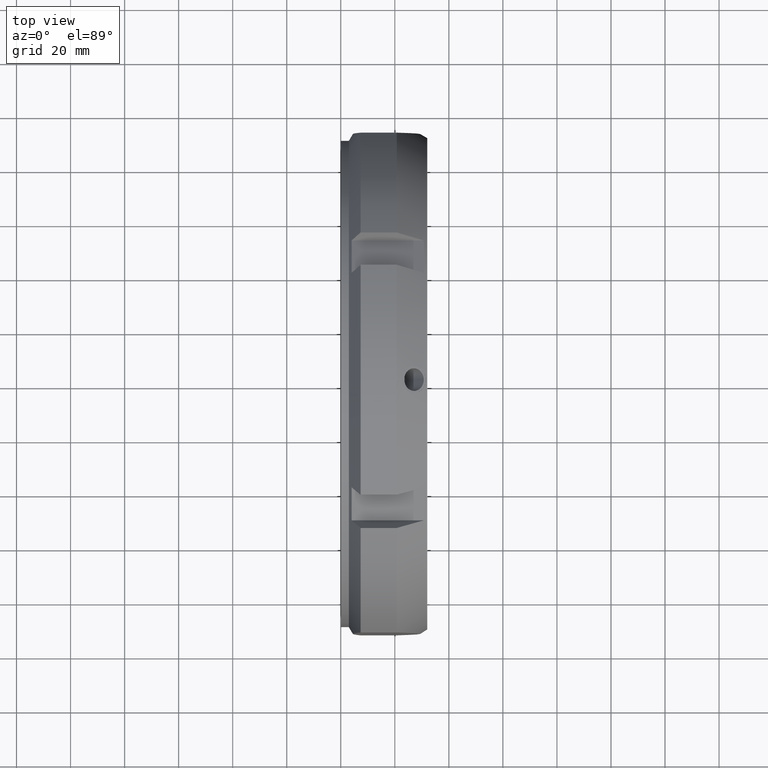
[diagram: clean part render]
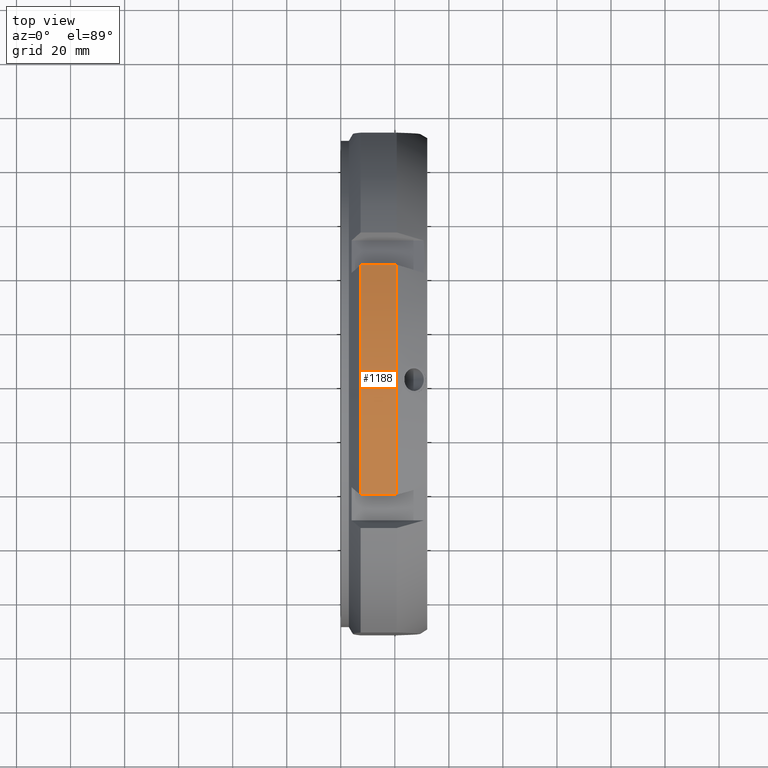
[diagram: same view with one face highlighted and labeled with its STEP entity id]
A machine part, top view. The second image highlights one B-rep face of the part: STEP entity #1188.
In plain terms, the highlighted cylindrical surface (partial cylindrical patch) has radius 97.5 mm, axis along (1, 0, 0).
Its self-contained STEP definition (entity closure, byte-faithful):
#448=CARTESIAN_POINT('',(7.330127018922159,-42.562018824970465,87.719579077551785));
#449=VERTEX_POINT('',#448);
#463=CARTESIAN_POINT('',(7.330127018922159,42.562018824970394,87.719579077551813));
#464=VERTEX_POINT('',#463);
#465=CARTESIAN_POINT('',(7.330127018922159,0.0,0.0));
#466=DIRECTION('',(1.0,0.0,0.0));
#467=DIRECTION('',(0.0,1.0,0.0));
#468=AXIS2_PLACEMENT_3D('',#465,#466,#467);
#469=CIRCLE('',#468,97.5);
#470=EDGE_CURVE('',#464,#449,#469,.T.);
#669=CARTESIAN_POINT('',(20.741669750802263,42.562018824970409,87.719579077551813));
#670=VERTEX_POINT('',#669);
#671=CARTESIAN_POINT('',(20.741669750802263,42.562018824970394,87.719579077551813));
#672=DIRECTION('',(-1.0,0.0,0.0));
#673=VECTOR('',#672,13.411542731880104);
#674=LINE('',#671,#673);
#675=EDGE_CURVE('',#670,#464,#674,.T.);
#739=CARTESIAN_POINT('',(20.741669750802213,-42.562018824970465,87.719579077551799));
#740=VERTEX_POINT('',#739);
#754=CARTESIAN_POINT('',(7.330127018922159,-42.562018824970465,87.719579077551785));
#755=DIRECTION('',(1.0,0.0,0.0));
#756=VECTOR('',#755,13.411542731880058);
#757=LINE('',#754,#756);
#758=EDGE_CURVE('',#449,#740,#757,.T.);
#917=CARTESIAN_POINT('',(20.741669750802259,0.0,0.0));
#918=DIRECTION('',(1.0,0.0,0.0));
#919=DIRECTION('',(0.0,1.0,0.0));
#920=AXIS2_PLACEMENT_3D('',#917,#918,#919);
#921=CIRCLE('',#920,97.5);
#922=EDGE_CURVE('',#670,#740,#921,.T.);
#1177=CARTESIAN_POINT('',(14.035898384862209,0.0,0.0));
#1178=DIRECTION('',(1.0,0.0,0.0));
#1179=DIRECTION('',(0.0,1.0,0.0));
#1180=AXIS2_PLACEMENT_3D('',#1177,#1178,#1179);
#1181=CYLINDRICAL_SURFACE('',#1180,97.5);
#1182=ORIENTED_EDGE('',*,*,#675,.T.);
#1183=ORIENTED_EDGE('',*,*,#470,.T.);
#1184=ORIENTED_EDGE('',*,*,#758,.T.);
#1185=ORIENTED_EDGE('',*,*,#922,.F.);
#1186=EDGE_LOOP('',(#1182,#1183,#1184,#1185));
#1187=FACE_OUTER_BOUND('',#1186,.T.);
#1188=ADVANCED_FACE('',(#1187),#1181,.T.);